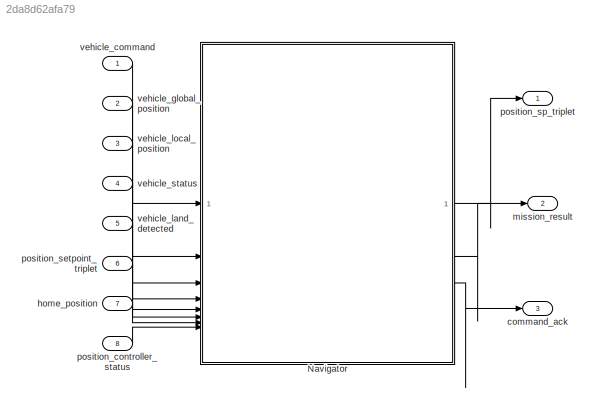
MODEL slx_2da8d62afa79
KIND model
CONFIG AbsTol = auto
CONFIG EnableMultiTasking = off
CONFIG FixedStep = 0.05
CONFIG MaxStep = auto
CONFIG MinStep = auto
CONFIG RelTol = 1e-3
CONFIG SampleTimeConstraint = Unconstrained
CONFIG SolverName = FixedStepAuto
CONFIG StartTime = 0.0
CONFIG StopTime = 10.0
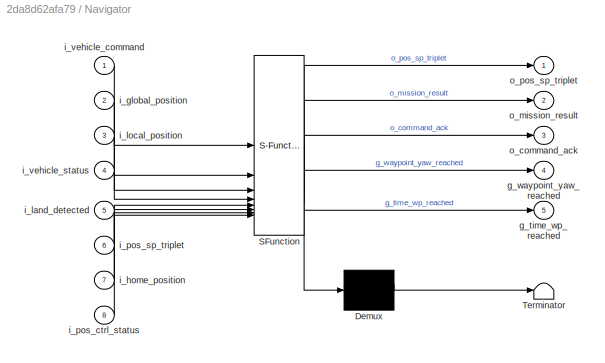
BLOCK [SubSystem] Navigator
  ErrorFcn = Stateflow.Translate.translate
  PermitHierarchicalResolution = ExplicitOnly
  SFBlockType = Chart
  TreatAsAtomicUnit = on
BLOCK [Demux] Navigator/ Demux 
  Outputs = 1
BLOCK [S-Function] Navigator/ SFunction 
  EnableBusSupport = on
  FunctionName = sf_sfun
  Parameters = CONSTANTS_RADIUS_OF_EARTH,FW_AIRSPD_TRIM,FW_T_SINK_MIN,GF_ACTION,MAV_CMD_NAV_LOITER_TO_ALT,MAV_CMD_NAV_TAKEOFF,MAV_CMD_NAV_WAYPOINT,MIS_LTRMIN_ALT,MIS_TAKEOFF_ALT,MIS_YAW_ERR,MIS_YAW_TMT,MPC_ACC_HOR,MPC_JERK_AUTO,MPC_XY_CRUISE,MPC_Z_VEL_MAX_DN,NAV_ACC_RAD,NAV_FW_ALTL_RAD,NAV_FW_ALT_RAD,NAV_GPSF_LT,NAV_GPSF_P,NAV_GPSF_R,NAV_GPSF_TR,NAV_LOITER_RAD,NAV_MC_ALT_RAD,RTL_CONE_ANG,RTL_DESCEND_ALT,RTL_LAND...<+95ch>
  PortCounts = [8 6]
  SFcnIsStateOwnerBlock = off
  SFunctionDeploymentMode = off
  Tag = Stateflow S-Function 3
BLOCK [Terminator] Navigator/ Terminator 
BLOCK [Outport] Navigator/g_time_wp_reached
  Port = 5
BLOCK [Outport] Navigator/g_waypoint_yaw_reached
  Port = 4
BLOCK [Inport] Navigator/i_global_position
  Port = 2
BLOCK [Inport] Navigator/i_home_position
  Port = 7
BLOCK [Inport] Navigator/i_land_detected
  Port = 5
BLOCK [Inport] Navigator/i_local_position
  Port = 3
BLOCK [Inport] Navigator/i_pos_ctrl_status
  Port = 8
BLOCK [Inport] Navigator/i_pos_sp_triplet
  Port = 6
BLOCK [Inport] Navigator/i_vehicle_command
BLOCK [Inport] Navigator/i_vehicle_status
  Port = 4
BLOCK [Outport] Navigator/o_command_ack
  Port = 3
BLOCK [Outport] Navigator/o_mission_result
  Port = 2
BLOCK [Outport] Navigator/o_pos_sp_triplet
BLOCK [Outport] command_ack
  OutDataTypeStr = Bus: vehicle_command_ack_s
  Port = 3
BLOCK [Inport] home_position
  OutDataTypeStr = Bus: home_position_s
  Port = 7
BLOCK [Outport] mission_result
  OutDataTypeStr = Bus: mission_result_s
  Port = 2
BLOCK [Inport] position_controller_status
  OutDataTypeStr = Bus: position_controller_status_s
  Port = 8
BLOCK [Inport] position_setpoint_triplet
  OutDataTypeStr = Bus: position_setpoint_triplet_s
  Port = 6
BLOCK [Outport] position_sp_triplet
  OutDataTypeStr = Bus: position_setpoint_triplet_s
BLOCK [Inport] vehicle_command
  OutDataTypeStr = Bus: vehicle_command_s
BLOCK [Inport] vehicle_global_position
  OutDataTypeStr = Bus: vehicle_global_position_s
  Port = 2
BLOCK [Inport] vehicle_land_detected
  OutDataTypeStr = Bus: vehicle_land_detected_s
  Port = 5
BLOCK [Inport] vehicle_local_position
  OutDataTypeStr = Bus: vehicle_local_position_s
  Port = 3
BLOCK [Inport] vehicle_status
  OutDataTypeStr = Bus: vehicle_status_s
  Port = 4
LINE Navigator:1 -> position_sp_triplet:1
LINE Navigator:2 -> mission_result:1
LINE Navigator:3 -> command_ack:1
LINE home_position:1 -> Navigator:7
LINE position_controller_status:1 -> Navigator:8
LINE position_setpoint_triplet:1 -> Navigator:6
LINE vehicle_command:1 -> Navigator:1
LINE vehicle_global_position:1 -> Navigator:2
LINE vehicle_land_detected:1 -> Navigator:5
LINE vehicle_local_position:1 -> Navigator:3
LINE vehicle_status:1 -> Navigator:4
CHART Navigator states=107 transitions=72
  STATE_LABEL 'COMMAND'
  STATE_LABEL 'CMD_DO_GO_AROUND\nen:\n% 临时给输出赋值，后续删除\no_pos_sp_triplet = i_pos_sp_triplet;\no_mission_result.timestamp = uint64(getSimulationTime()*1e6);\n%\n'
  STATE_LABEL 'not_running\n'
  STATE_LABEL 'running\nen:\npublish_vehicle_command_ack(i_vehicle_command, VEHICLE_COMMAND.VEHICLE_CMD_RESULT_ACCEPTED);'
  STATE_LABEL '[i_vehicle_command.command == VEHICLE_COMMAND.VEHICLE_CMD_DO_GO_AROUND]'
  STATE_LABEL '[i_vehicle_command.command ~= VEHICLE_COMMAND.VEHICLE_CMD_DO_GO_AROUND]'
  STATE_LABEL 'CMD_DO_REPOSITION\n'
  STATE_LABEL 'not_running\n\n'
  STATE_LABEL 'running\nen:\nset_reposition_setpoint();\n'
  STATE_LABEL 'set_reposition_setpoint'
  STATE_LABEL 'SCRIPT:\nfunction set_reposition_setpoint\n\n%% 判断reposition是否在禁飞区内\nreposition_valid = true;\nif (GF_ACTION ~= GEOFENCE_RESULT.GF_ACTION_NONE &&  GF_ACTION ~= GEOFENCE_RESULT.GF_ACTION_WARN)\n    if isfinite(i_vehicle_command.param5) && isfinite(i_vehicle_command.param6)\n        lat = i_vehicle_command.param5;\n        lon = i_vehicle_command.param6;\n\n        if isfinite(i_vehicle_command.param7)\n      ...<+3608ch>'
  STATE_LABEL '[i_vehicle_command.command == VEHICLE_COMMAND.VEHICLE_CMD_DO_REPOSITION ]'
  STATE_LABEL '[i_vehicle_command.command ~= VEHICLE_COMMAND.VEHICLE_CMD_DO_REPOSITION]'
  STATE_LABEL 'CMD_NAV_TAKEOFF'
  STATE_LABEL 'not_running\n'
  STATE_LABEL 'running\nen:\n% 前一航点\nif ((i_home_position.timestamp > 0) && i_home_position.valid_alt && i_home_position.valid_hpos && i_home_position.valid_lpos)\n    g_takeoff_triplet.previous.valid = true;\n    g_takeoff_triplet.previous.timestamp = uint64(getSimulationTime()*1e6);\nelse\n    g_takeoff_triplet.previous.valid = false;\nend\ng_takeoff_triplet.previous.lat = i_global_position.lat;\ng_takeoff_triplet.previ...<+1147ch>'
  STATE_LABEL '[i_vehicle_command.command == VEHICLE_COMMAND.VEHICLE_CMD_NAV_TAKEOFF]'
  STATE_LABEL '[i_vehicle_command.command ~= VEHICLE_COMMAND.VEHICLE_CMD_NAV_TAKEOFF]'
  STATE_LABEL 'CMD_DO_CHANGE_SPEED'
  STATE_LABEL 'not_running\n'
  STATE_LABEL 'running\nen:\nif (i_vehicle_command.param2 > eps)\n    % 速度指令有效\n    if (i_vehicle_status.vehicle_type == VEHICLE_STATUS.VEHICLE_TYPE_ROTARY_WING)\n        g_mission_cruising_speed_mc = i_vehicle_command.param2;\n    else\n        g_mission_cruising_speed_fw = i_vehicle_command.param2;\n    end\nelse\n    % 速度指令无效\n    if (i_vehicle_status.vehicle_type == VEHICLE_STATUS.VEHICLE_TYPE_ROTARY_WING)\n        g_mi...<+374ch>'
  STATE_LABEL '[i_vehicle_command.command==VEHICLE_COMMAND.VEHICLE_CMD_DO_CHANGE_SPEED]'
  STATE_LABEL '[i_vehicle_command.command~=VEHICLE_COMMAND.VEHICLE_CMD_DO_CHANGE_SPEED]'
  STATE_LABEL 'CMD_DO_GO_AROUND\nen:\n% 临时给输出赋值，后续删除\no_pos_sp_triplet = i_pos_sp_triplet;\no_mission_result.timestamp = uint64(getSimulationTime()*1e6);\n%\n'
  STATE_LABEL 'not_running\n'
  STATE_LABEL 'running\nen:\npublish_vehicle_command_ack(i_vehicle_command, VEHICLE_COMMAND.VEHICLE_CMD_RESULT_ACCEPTED);'
  STATE_LABEL '[i_vehicle_command.command == VEHICLE_COMMAND.VEHICLE_CMD_DO_GO_AROUND]'
  STATE_LABEL '[i_vehicle_command.command ~= VEHICLE_COMMAND.VEHICLE_CMD_DO_GO_AROUND]'
  STATE_LABEL 'not_running\n'
  STATE_LABEL 'running\nen:\npublish_vehicle_command_ack(i_vehicle_command, VEHICLE_COMMAND.VEHICLE_CMD_RESULT_ACCEPTED);'
  STATE_LABEL 'CMD_DO_REPOSITION\n'
  STATE_LABEL 'not_running\n\n'
  STATE_LABEL 'running\nen:\nset_reposition_setpoint();\n'
  STATE_LABEL 'set_reposition_setpoint'
  STATE_LABEL 'SCRIPT:\nfunction set_reposition_setpoint\n\n%% 判断reposition是否在禁飞区内\nreposition_valid = true;\nif (GF_ACTION ~= GEOFENCE_RESULT.GF_ACTION_NONE &&  GF_ACTION ~= GEOFENCE_RESULT.GF_ACTION_WARN)\n    if isfinite(i_vehicle_command.param5) && isfinite(i_vehicle_command.param6)\n        lat = i_vehicle_command.param5;\n        lon = i_vehicle_command.param6;\n\n        if isfinite(i_vehicle_command.param7)\n      ...<+3608ch>'
  STATE_LABEL '[i_vehicle_command.command == VEHICLE_COMMAND.VEHICLE_CMD_DO_REPOSITION ]'
  STATE_LABEL '[i_vehicle_command.command ~= VEHICLE_COMMAND.VEHICLE_CMD_DO_REPOSITION]'
  STATE_LABEL 'not_running\n\n'
  STATE_LABEL 'running\nen:\nset_reposition_setpoint();\n'
  STATE_LABEL 'set_reposition_setpoint'
CHART  states=0 transitions=0
